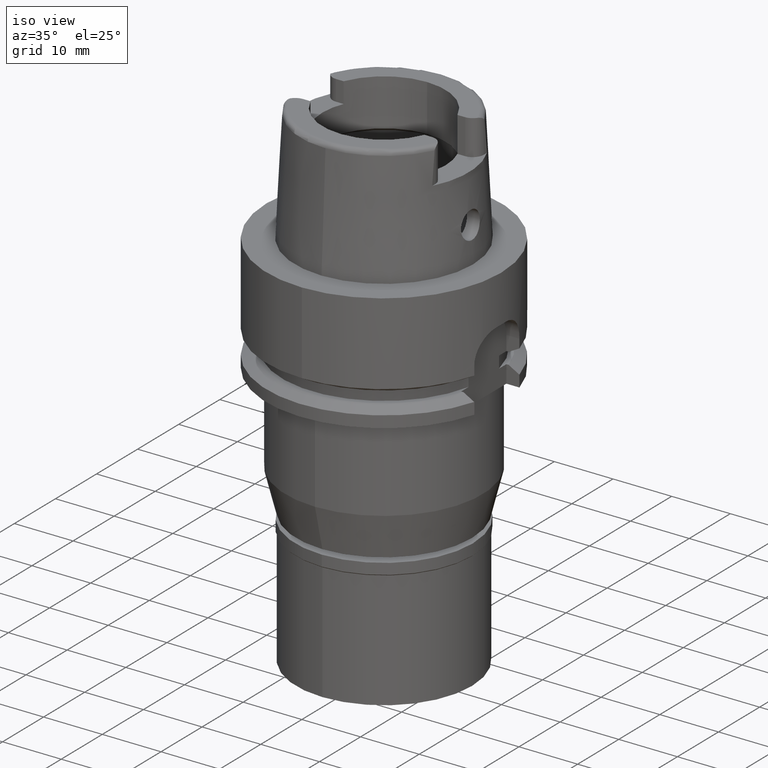
[diagram: clean part render]
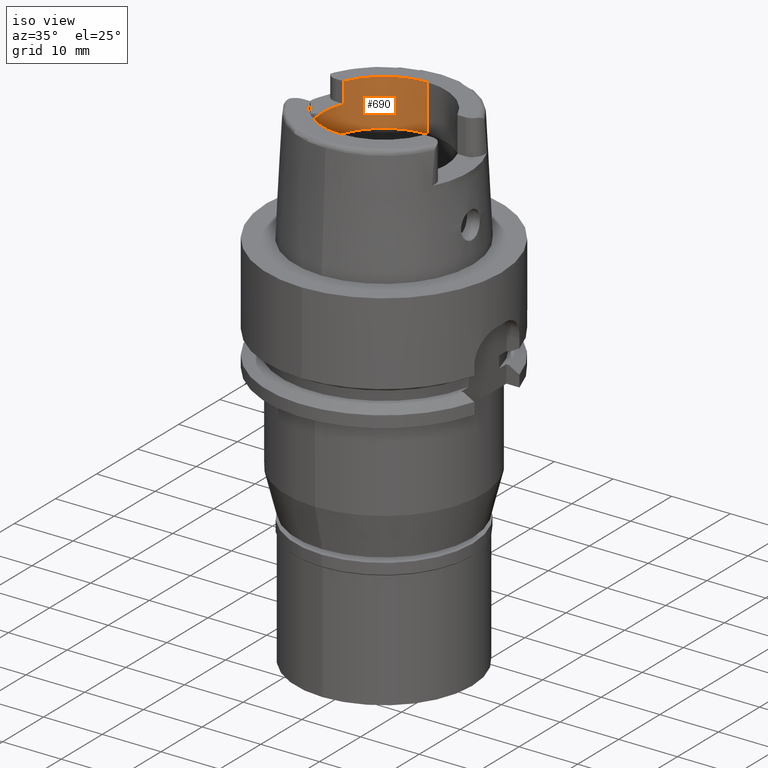
[diagram: same view with one face highlighted and labeled with its STEP entity id]
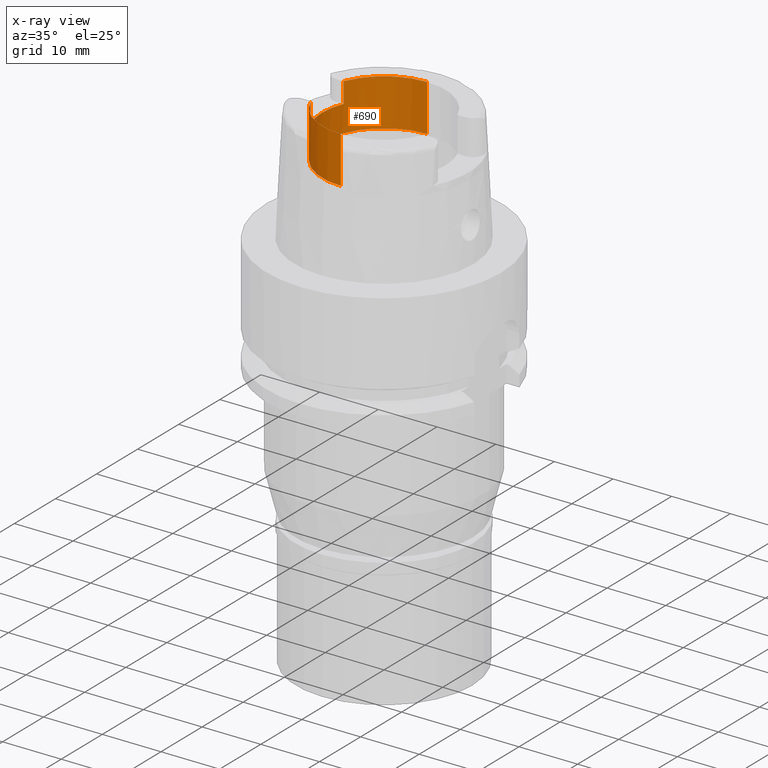
[diagram: x-ray of the same camera — body ghosted, the highlighted face saturated]
A machine part, iso view. The second image highlights one B-rep face of the part: STEP entity #690.
The next image is the same camera in x-ray: the body ghosted, the highlighted face saturated — about 0% of this face is hidden behind the body in this view.
In plain terms, the highlighted cylindrical surface (partial cylindrical patch) has radius 10.5 mm, axis along (0, 0, 1).
Its self-contained STEP definition (entity closure, byte-faithful):
#132 = DIRECTION ( 'NONE',  ( 0.0000000000000000000, 0.0000000000000000000, -1.000000000000000000 ) ) ;
#158 = CARTESIAN_POINT ( 'NONE',  ( 0.0000000000000000000, -10.50000000000000000, 11.99735026918999914 ) ) ;
#165 = VECTOR ( 'NONE', #3993, 1000.000000000000000 ) ;
#274 = VECTOR ( 'NONE', #5122, 1000.000000000000000 ) ;
#358 = ORIENTED_EDGE ( 'NONE', *, *, #4764, .F. ) ;
#576 = ORIENTED_EDGE ( 'NONE', *, *, #1942, .F. ) ;
#690 = ADVANCED_FACE ( 'NONE', ( #3171 ), #1026, .F. ) ;
#725 = DIRECTION ( 'NONE',  ( 0.0000000000000000000, 0.0000000000000000000, 1.000000000000000000 ) ) ;
#780 = AXIS2_PLACEMENT_3D ( 'NONE', #3131, #4825, #3474 ) ;
#821 = CARTESIAN_POINT ( 'NONE',  ( -9.697905701747998819, -4.025000000000000355, 20.00000000000000000 ) ) ;
#823 = EDGE_CURVE ( 'NONE', #2546, #875, #3348, .T. ) ;
#855 = DIRECTION ( 'NONE',  ( 0.0000000000000000000, 1.000000000000000000, 0.0000000000000000000 ) ) ;
#875 = VERTEX_POINT ( 'NONE', #4143 ) ;
#1026 = CYLINDRICAL_SURFACE ( 'NONE', #4407, 10.50000000000000000 ) ;
#1058 = DIRECTION ( 'NONE',  ( -0.9236100668331782559, 0.3833333333332911153, 0.0000000000000000000 ) ) ;
#1140 = CARTESIAN_POINT ( 'NONE',  ( 0.0000000000000000000, 10.50000000000000000, 20.00000000000000000 ) ) ;
#1211 = EDGE_CURVE ( 'NONE', #3794, #875, #4257, .T. ) ;
#1320 = CARTESIAN_POINT ( 'NONE',  ( -9.697905701747998819, 4.025000000000000355, 20.00000000000000000 ) ) ;
#1434 = LINE ( 'NONE', #3122, #274 ) ;
#1475 = DIRECTION ( 'NONE',  ( 0.0000000000000000000, 0.0000000000000000000, 1.000000000000000000 ) ) ;
#1942 = EDGE_CURVE ( 'NONE', #3521, #3465, #3139, .T. ) ;
#1954 = CARTESIAN_POINT ( 'NONE',  ( 0.0000000000000000000, 0.0000000000000000000, -62.21499999999999631 ) ) ;
#1980 = DIRECTION ( 'NONE',  ( 0.0000000000000000000, 0.0000000000000000000, 1.000000000000000000 ) ) ;
#2040 = CIRCLE ( 'NONE', #4663, 10.49999999999999822 ) ;
#2236 = EDGE_CURVE ( 'NONE', #3521, #3272, #4107, .T. ) ;
#2337 = DIRECTION ( 'NONE',  ( 0.0000000000000000000, 1.000000000000000000, 0.0000000000000000000 ) ) ;
#2459 = VERTEX_POINT ( 'NONE', #1320 ) ;
#2546 = VERTEX_POINT ( 'NONE', #5127 ) ;
#2675 = CARTESIAN_POINT ( 'NONE',  ( -9.697905701747998819, -4.025000000000000355, 20.00000000000000000 ) ) ;
#2900 = CARTESIAN_POINT ( 'NONE',  ( 0.0000000000000000000, -10.50000000000000000, 20.00000000000000000 ) ) ;
#2902 = AXIS2_PLACEMENT_3D ( 'NONE', #5243, #1475, #1058 ) ;
#3067 = AXIS2_PLACEMENT_3D ( 'NONE', #4482, #725, #855 ) ;
#3122 = CARTESIAN_POINT ( 'NONE',  ( -9.697905701747998819, 4.025000000000000355, 16.50000000000000000 ) ) ;
#3131 = CARTESIAN_POINT ( 'NONE',  ( 0.0000000000000000000, 0.0000000000000000000, 11.99735026918999914 ) ) ;
#3139 = LINE ( 'NONE', #158, #165 ) ;
#3171 = FACE_OUTER_BOUND ( 'NONE', #3175, .T. ) ;
#3175 = EDGE_LOOP ( 'NONE', ( #3244, #3375, #576, #4240, #5125, #3473, #358, #3750 ) ) ;
#3244 = ORIENTED_EDGE ( 'NONE', *, *, #1211, .F. ) ;
#3261 = VERTEX_POINT ( 'NONE', #1140 ) ;
#3272 = VERTEX_POINT ( 'NONE', #4086 ) ;
#3342 = CARTESIAN_POINT ( 'NONE',  ( 0.0000000000000000000, 0.0000000000000000000, 20.00000000000000000 ) ) ;
#3348 = CIRCLE ( 'NONE', #2902, 10.49999999999999822 ) ;
#3375 = ORIENTED_EDGE ( 'NONE', *, *, #3675, .T. ) ;
#3448 = CARTESIAN_POINT ( 'NONE',  ( 0.0000000000000000000, 10.50000000000000000, 11.99735026918999914 ) ) ;
#3465 = VERTEX_POINT ( 'NONE', #2900 ) ;
#3473 = ORIENTED_EDGE ( 'NONE', *, *, #4476, .T. ) ;
#3474 = DIRECTION ( 'NONE',  ( 0.0000000000000000000, -1.000000000000000000, 0.0000000000000000000 ) ) ;
#3521 = VERTEX_POINT ( 'NONE', #3710 ) ;
#3641 = DIRECTION ( 'NONE',  ( -0.9236100668331782559, -0.3833333333332911153, 0.0000000000000000000 ) ) ;
#3675 = EDGE_CURVE ( 'NONE', #3794, #3465, #2040, .T. ) ;
#3709 = VECTOR ( 'NONE', #132, 1000.000000000000000 ) ;
#3710 = CARTESIAN_POINT ( 'NONE',  ( 0.0000000000000000000, -10.50000000000000000, 11.99735026918999914 ) ) ;
#3750 = ORIENTED_EDGE ( 'NONE', *, *, #823, .T. ) ;
#3794 = VERTEX_POINT ( 'NONE', #821 ) ;
#3993 = DIRECTION ( 'NONE',  ( 0.0000000000000000000, -4.528210123235999978E-14, 1.000000000000000000 ) ) ;
#4086 = CARTESIAN_POINT ( 'NONE',  ( 0.0000000000000000000, 10.50000000000000000, 11.99735026918999914 ) ) ;
#4089 = EDGE_CURVE ( 'NONE', #3272, #3261, #4193, .T. ) ;
#4107 = CIRCLE ( 'NONE', #780, 10.50000000000000000 ) ;
#4143 = CARTESIAN_POINT ( 'NONE',  ( -9.697905701747998819, -4.025000000000000355, 16.50000000000000000 ) ) ;
#4193 = LINE ( 'NONE', #3448, #5093 ) ;
#4240 = ORIENTED_EDGE ( 'NONE', *, *, #2236, .T. ) ;
#4257 = LINE ( 'NONE', #2675, #3709 ) ;
#4407 = AXIS2_PLACEMENT_3D ( 'NONE', #1954, #1980, #2337 ) ;
#4476 = EDGE_CURVE ( 'NONE', #3261, #2459, #4748, .T. ) ;
#4482 = CARTESIAN_POINT ( 'NONE',  ( 0.0000000000000000000, 0.0000000000000000000, 20.00000000000000000 ) ) ;
#4551 = DIRECTION ( 'NONE',  ( 0.0000000000000000000, 0.0000000000000000000, 1.000000000000000000 ) ) ;
#4663 = AXIS2_PLACEMENT_3D ( 'NONE', #3342, #4551, #3641 ) ;
#4748 = CIRCLE ( 'NONE', #3067, 10.50000000000000000 ) ;
#4764 = EDGE_CURVE ( 'NONE', #2546, #2459, #1434, .T. ) ;
#4825 = DIRECTION ( 'NONE',  ( 0.0000000000000000000, 0.0000000000000000000, -1.000000000000000000 ) ) ;
#5042 = DIRECTION ( 'NONE',  ( 0.0000000000000000000, 4.528210123235999978E-14, 1.000000000000000000 ) ) ;
#5093 = VECTOR ( 'NONE', #5042, 1000.000000000000000 ) ;
#5122 = DIRECTION ( 'NONE',  ( 0.0000000000000000000, 0.0000000000000000000, 1.000000000000000000 ) ) ;
#5125 = ORIENTED_EDGE ( 'NONE', *, *, #4089, .T. ) ;
#5127 = CARTESIAN_POINT ( 'NONE',  ( -9.697905701747998819, 4.025000000000000355, 16.50000000000000000 ) ) ;
#5243 = CARTESIAN_POINT ( 'NONE',  ( 0.0000000000000000000, 0.0000000000000000000, 16.50000000000000000 ) ) ;